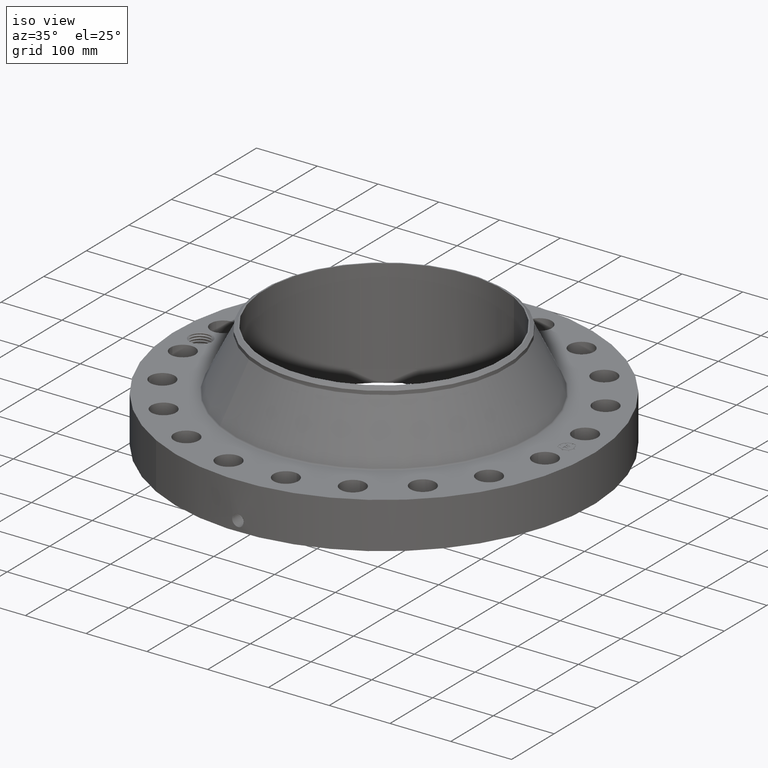
[diagram: clean part render]
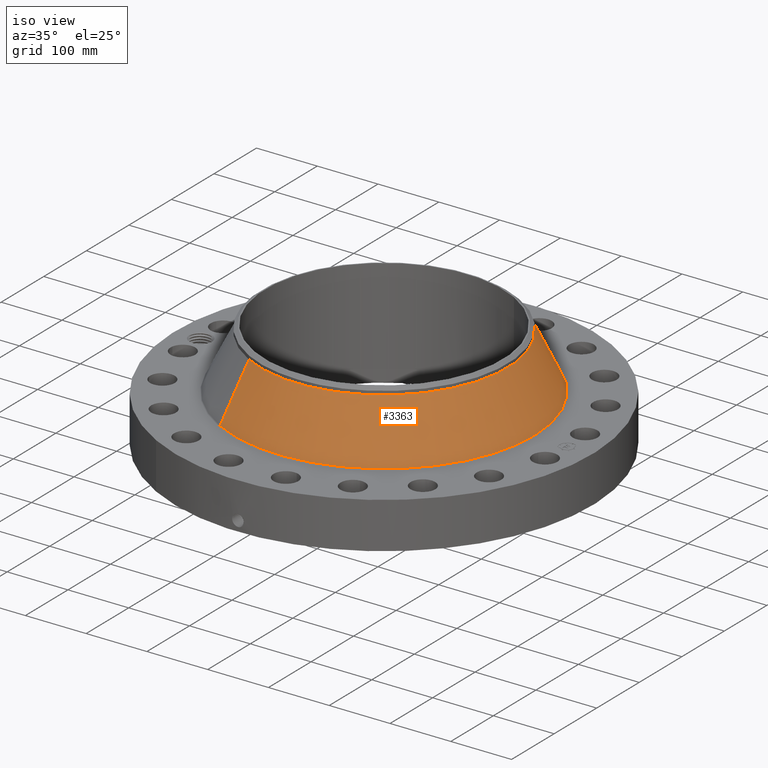
[diagram: same view with one face highlighted and labeled with its STEP entity id]
A machine part, iso view. The second image highlights one B-rep face of the part: STEP entity #3363.
In plain terms, the highlighted conical surface has half-angle 26.02 deg.
Its self-contained STEP definition (entity closure, byte-faithful):
#2622=AXIS2_PLACEMENT_3D('Circle Axis2P3D',#2620,#2621,$) ;
#3336=AXIS2_PLACEMENT_3D('Cone Axis2P3D',#3333,#3334,#3335) ;
#3347=AXIS2_PLACEMENT_3D('Circle Axis2P3D',#3345,#3346,$) ;
#2617=CARTESIAN_POINT('Vertex',(4.65863456751,8.52757337578,3.31735707876)) ;
#2620=CARTESIAN_POINT('Axis2P3D Location',(0.,0.,3.31735707876)) ;
#2624=CARTESIAN_POINT('Vertex',(-4.65863456751,-8.52757337578,3.31735707876)) ;
#3333=CARTESIAN_POINT('Axis2P3D Location',(0.,0.,6.83479295521)) ;
#3338=CARTESIAN_POINT('Line Origine',(4.24701943818,7.77411693547,5.07607501698)) ;
#3342=CARTESIAN_POINT('Vertex',(3.83540430885,7.02066049515,6.83479295521)) ;
#3345=CARTESIAN_POINT('Axis2P3D Location',(0.,0.,6.83479295521)) ;
#3349=CARTESIAN_POINT('Vertex',(-3.83540430885,-7.02066049515,6.83479295521)) ;
#3352=CARTESIAN_POINT('Line Origine',(-4.24701943818,-7.77411693547,5.07607501698)) ;
#2621=DIRECTION('Axis2P3D Direction',(0.,0.,-0.0393700787402)) ;
#3334=DIRECTION('Axis2P3D Direction',(0.,0.,-0.0393700787402)) ;
#3335=DIRECTION('Axis2P3D XDirection',(-0.0188750212049,-0.0345504945626,0.)) ;
#3339=DIRECTION('Vector Direction',(0.0082803021249,0.0151569913717,-0.0353794475548)) ;
#3346=DIRECTION('Axis2P3D Direction',(0.,0.,-0.0393700787402)) ;
#3353=DIRECTION('Vector Direction',(-0.0082803021249,-0.0151569913717,-0.0353794475548)) ;
#3340=VECTOR('Line Direction',#3339,0.0393700787402) ;
#3354=VECTOR('Line Direction',#3353,0.0393700787402) ;
#3358=ORIENTED_EDGE('',*,*,#2626,.F.) ;
#3359=ORIENTED_EDGE('',*,*,#3344,.T.) ;
#3360=ORIENTED_EDGE('',*,*,#3351,.T.) ;
#3361=ORIENTED_EDGE('',*,*,#3356,.F.) ;
#3363=ADVANCED_FACE('PartBody',(#3362),#3337,.T.) ;
#2623=CIRCLE('generated circle',#2622,9.71711807651) ;
#3348=CIRCLE('generated circle',#3347,8.00000000003) ;
#3337=CONICAL_SURFACE('Cone',#3336,8.00000000003,0.454141517362) ;
#2626=EDGE_CURVE('',#2618,#2625,#2623,.T.) ;
#3344=EDGE_CURVE('',#2618,#3343,#3341,.F.) ;
#3351=EDGE_CURVE('',#3343,#3350,#3348,.T.) ;
#3356=EDGE_CURVE('',#2625,#3350,#3355,.F.) ;
#3357=EDGE_LOOP('',(#3358,#3359,#3360,#3361)) ;
#3362=FACE_OUTER_BOUND('',#3357,.T.) ;
#3341=LINE('Line',#3338,#3340) ;
#3355=LINE('Line',#3352,#3354) ;
#2618=VERTEX_POINT('',#2617) ;
#2625=VERTEX_POINT('',#2624) ;
#3343=VERTEX_POINT('',#3342) ;
#3350=VERTEX_POINT('',#3349) ;